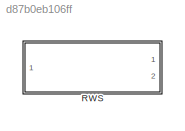
MODEL slx_d87b0eb106ff
KIND library
CONFIG AbsTol = auto
CONFIG EnableMultiTasking = off
CONFIG FixedStep = auto
CONFIG MaxStep = auto
CONFIG MinStep = auto
CONFIG RelTol = 1e-3
CONFIG SampleTimeConstraint = Unconstrained
CONFIG Solver = ode45
CONFIG SolverName = ode45
CONFIG StartTime = 0.0
CONFIG StopTime = 10.0
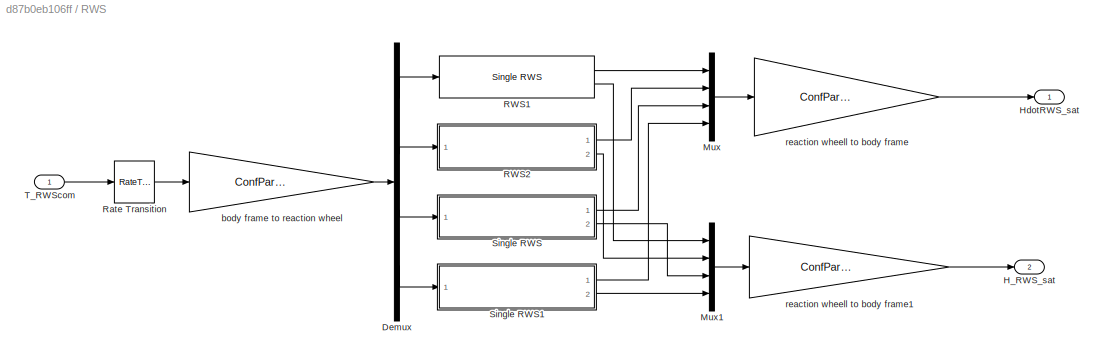
BLOCK [SubSystem] RWS
  Ports = [1, 2]
  RequestExecContextInheritance = off
BLOCK [Demux] RWS/Demux
  DisplayOption = bar
  Ports = [1, 4]
BLOCK [Outport] RWS/H_RWS_sat
  IconDisplay = Port number
  Port = 2
BLOCK [Outport] RWS/HdotRWS_sat
  IconDisplay = Port number
BLOCK [Mux] RWS/Mux
  DisplayOption = bar
  Ports = [4, 1]
BLOCK [Mux] RWS/Mux1
  DisplayOption = bar
  Ports = [4, 1]
BLOCK [Reference] RWS/RWS1  REF=SingleRWS/Single RWS
  Ports = [1, 2]
  SourceBlock = SingleRWS/Single RWS
  SourceType = SubSystem
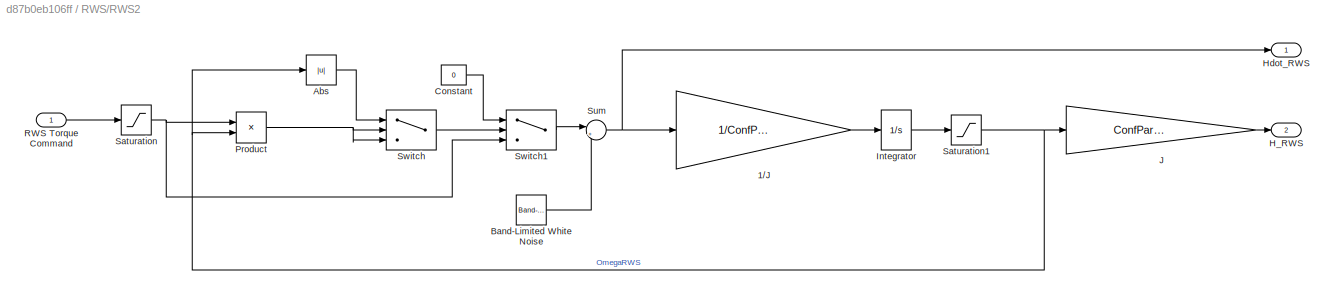
BLOCK [SubSystem] RWS/RWS2
  Ports = [1, 2]
  RequestExecContextInheritance = off
BLOCK [Gain] RWS/RWS2/1//J
  Gain = 1/ConfParam.confRWS.I_RWS
  OutDataTypeStr = Inherit: Inherit via internal rule
  ParamDataTypeStr = Inherit: Inherit via internal rule
  SaturateOnIntegerOverflow = off
BLOCK [Abs] RWS/RWS2/Abs
  SaturateOnIntegerOverflow = off
BLOCK [Reference] RWS/RWS2/Band-Limited White Noise  REF=simulink/Sources/Band-Limited
White Noise
  Ports = [0, 1]
  SourceBlock = simulink/Sources/Band-Limited\nWhite Noise
  SourceProductBaseCode = SL
  SourceProductName = Simulink
  SourceType = Band-Limited White Noise.
BLOCK [Constant] RWS/RWS2/Constant
  Value = 0
BLOCK [Outport] RWS/RWS2/H_RWS
  IconDisplay = Port number
  Port = 2
BLOCK [Outport] RWS/RWS2/Hdot_RWS
  IconDisplay = Port number
BLOCK [Integrator] RWS/RWS2/Integrator
  InitialCondition = ConfParam.confRWS.IntitOmegaRWS(2)
  Ports = [1, 1]
BLOCK [Gain] RWS/RWS2/J
  Gain = ConfParam.confRWS.I_RWS
  OutDataTypeStr = Inherit: Inherit via internal rule
  ParamDataTypeStr = Inherit: Inherit via internal rule
  SaturateOnIntegerOverflow = off
BLOCK [Product] RWS/RWS2/Product
  InputSameDT = off
  OutDataTypeStr = Inherit: Inherit via internal rule
  Ports = [2, 1]
  RndMeth = Floor
  SaturateOnIntegerOverflow = off
BLOCK [Inport] RWS/RWS2/RWS Torque Command
  IconDisplay = Port number
BLOCK [Saturate] RWS/RWS2/Saturation
  InputPortMap = u0
  LowerLimit = -ConfParam.confRWS.Tmax
  Ports = [1, 1]
  UpperLimit = ConfParam.confRWS.Tmax
BLOCK [Saturate] RWS/RWS2/Saturation1
  InputPortMap = u0
  LowerLimit = -ConfParam.confRWS.OmegaMax
  Ports = [1, 1]
  UpperLimit = ConfParam.confRWS.OmegaMax
BLOCK [Sum] RWS/RWS2/Sum
  IconShape = round
  InputSameDT = off
  Inputs = |++
  OutDataTypeStr = Inherit: Inherit via internal rule
  Ports = [2, 1]
  SaturateOnIntegerOverflow = off
BLOCK [Switch] RWS/RWS2/Switch
  Criteria = u2 > Threshold
  InputSameDT = off
  SaturateOnIntegerOverflow = off
BLOCK [Switch] RWS/RWS2/Switch1
  InputSameDT = off
  SaturateOnIntegerOverflow = off
  Threshold = ConfParam.confRWS.OmegaMax
BLOCK [RateTransition] RWS/Rate Transition
  InitialCondition = [0;0;0]
  OutPortSampleTime = ConfParam.confOrbit.dt
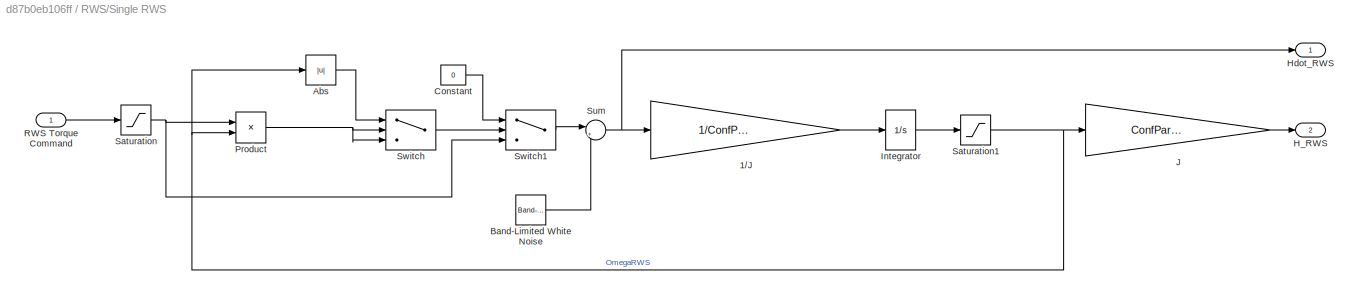
BLOCK [SubSystem] RWS/Single RWS
  Ports = [1, 2]
  RequestExecContextInheritance = off
BLOCK [Gain] RWS/Single RWS/1//J
  Gain = 1/ConfParam.confRWS.I_RWS
  OutDataTypeStr = Inherit: Inherit via internal rule
  ParamDataTypeStr = Inherit: Inherit via internal rule
  SaturateOnIntegerOverflow = off
BLOCK [Abs] RWS/Single RWS/Abs
  SaturateOnIntegerOverflow = off
BLOCK [Reference] RWS/Single RWS/Band-Limited White Noise  REF=simulink/Sources/Band-Limited
White Noise
  Ports = [0, 1]
  SourceBlock = simulink/Sources/Band-Limited\nWhite Noise
  SourceProductBaseCode = SL
  SourceProductName = Simulink
  SourceType = Band-Limited White Noise.
BLOCK [Constant] RWS/Single RWS/Constant
  Value = 0
BLOCK [Outport] RWS/Single RWS/H_RWS
  IconDisplay = Port number
  Port = 2
BLOCK [Outport] RWS/Single RWS/Hdot_RWS
  IconDisplay = Port number
BLOCK [Integrator] RWS/Single RWS/Integrator
  InitialCondition = ConfParam.confRWS.IntitOmegaRWS(3)
  Ports = [1, 1]
BLOCK [Gain] RWS/Single RWS/J
  Gain = ConfParam.confRWS.I_RWS
  OutDataTypeStr = Inherit: Inherit via internal rule
  ParamDataTypeStr = Inherit: Inherit via internal rule
  SaturateOnIntegerOverflow = off
BLOCK [Product] RWS/Single RWS/Product
  InputSameDT = off
  OutDataTypeStr = Inherit: Inherit via internal rule
  Ports = [2, 1]
  RndMeth = Floor
  SaturateOnIntegerOverflow = off
BLOCK [Inport] RWS/Single RWS/RWS Torque Command
  IconDisplay = Port number
BLOCK [Saturate] RWS/Single RWS/Saturation
  InputPortMap = u0
  LowerLimit = -ConfParam.confRWS.Tmax
  Ports = [1, 1]
  UpperLimit = ConfParam.confRWS.Tmax
BLOCK [Saturate] RWS/Single RWS/Saturation1
  InputPortMap = u0
  LowerLimit = -ConfParam.confRWS.OmegaMax
  Ports = [1, 1]
  UpperLimit = ConfParam.confRWS.OmegaMax
BLOCK [Sum] RWS/Single RWS/Sum
  IconShape = round
  InputSameDT = off
  Inputs = |++
  OutDataTypeStr = Inherit: Inherit via internal rule
  Ports = [2, 1]
  SaturateOnIntegerOverflow = off
BLOCK [Switch] RWS/Single RWS/Switch
  Criteria = u2 > Threshold
  InputSameDT = off
  SaturateOnIntegerOverflow = off
BLOCK [Switch] RWS/Single RWS/Switch1
  InputSameDT = off
  SaturateOnIntegerOverflow = off
  Threshold = ConfParam.confRWS.OmegaMax
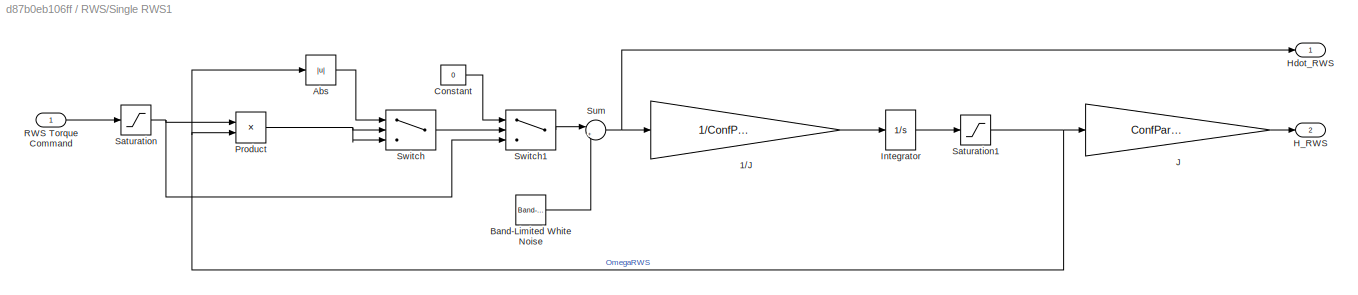
BLOCK [SubSystem] RWS/Single RWS1
  Ports = [1, 2]
  RequestExecContextInheritance = off
BLOCK [Gain] RWS/Single RWS1/1//J
  Gain = 1/ConfParam.confRWS.I_RWS
  OutDataTypeStr = Inherit: Inherit via internal rule
  ParamDataTypeStr = Inherit: Inherit via internal rule
  SaturateOnIntegerOverflow = off
BLOCK [Abs] RWS/Single RWS1/Abs
  SaturateOnIntegerOverflow = off
BLOCK [Reference] RWS/Single RWS1/Band-Limited White Noise  REF=simulink/Sources/Band-Limited
White Noise
  Ports = [0, 1]
  SourceBlock = simulink/Sources/Band-Limited\nWhite Noise
  SourceProductBaseCode = SL
  SourceProductName = Simulink
  SourceType = Band-Limited White Noise.
BLOCK [Constant] RWS/Single RWS1/Constant
  Value = 0
BLOCK [Outport] RWS/Single RWS1/H_RWS
  IconDisplay = Port number
  Port = 2
BLOCK [Outport] RWS/Single RWS1/Hdot_RWS
  IconDisplay = Port number
BLOCK [Integrator] RWS/Single RWS1/Integrator
  InitialCondition = ConfParam.confRWS.IntitOmegaRWS(4)
  Ports = [1, 1]
BLOCK [Gain] RWS/Single RWS1/J
  Gain = ConfParam.confRWS.I_RWS
  OutDataTypeStr = Inherit: Inherit via internal rule
  ParamDataTypeStr = Inherit: Inherit via internal rule
  SaturateOnIntegerOverflow = off
BLOCK [Product] RWS/Single RWS1/Product
  InputSameDT = off
  OutDataTypeStr = Inherit: Inherit via internal rule
  Ports = [2, 1]
  RndMeth = Floor
  SaturateOnIntegerOverflow = off
BLOCK [Inport] RWS/Single RWS1/RWS Torque Command
  IconDisplay = Port number
BLOCK [Saturate] RWS/Single RWS1/Saturation
  InputPortMap = u0
  LowerLimit = -ConfParam.confRWS.Tmax
  Ports = [1, 1]
  UpperLimit = ConfParam.confRWS.Tmax
BLOCK [Saturate] RWS/Single RWS1/Saturation1
  InputPortMap = u0
  LowerLimit = -ConfParam.confRWS.OmegaMax
  Ports = [1, 1]
  UpperLimit = ConfParam.confRWS.OmegaMax
BLOCK [Sum] RWS/Single RWS1/Sum
  IconShape = round
  InputSameDT = off
  Inputs = |++
  OutDataTypeStr = Inherit: Inherit via internal rule
  Ports = [2, 1]
  SaturateOnIntegerOverflow = off
BLOCK [Switch] RWS/Single RWS1/Switch
  Criteria = u2 > Threshold
  InputSameDT = off
  SaturateOnIntegerOverflow = off
BLOCK [Switch] RWS/Single RWS1/Switch1
  InputSameDT = off
  SaturateOnIntegerOverflow = off
  Threshold = ConfParam.confRWS.OmegaMax
BLOCK [Inport] RWS/T_RWScom
  IconDisplay = Port number
BLOCK [Gain] RWS/body frame to reaction wheel
  Gain = ConfParam.confRWS.N_bf
  Multiplication = Matrix(K*u)
  OutDataTypeStr = Inherit: Inherit via internal rule
  ParamDataTypeStr = Inherit: Inherit via internal rule
  SaturateOnIntegerOverflow = off
BLOCK [Gain] RWS/reaction wheell to body frame
  Gain = ConfParam.confRWS.N_RWS
  Multiplication = Matrix(K*u)
  OutDataTypeStr = Inherit: Inherit via internal rule
  ParamDataTypeStr = Inherit: Inherit via internal rule
  SaturateOnIntegerOverflow = off
BLOCK [Gain] RWS/reaction wheell to body frame1
  Gain = ConfParam.confRWS.N_RWS
  Multiplication = Matrix(K*u)
  OutDataTypeStr = Inherit: Inherit via internal rule
  ParamDataTypeStr = Inherit: Inherit via internal rule
  SaturateOnIntegerOverflow = off
LINE RWS/Demux:1 -> RWS/RWS1:1
LINE RWS/Demux:2 -> RWS/RWS2:1
LINE RWS/Demux:3 -> RWS/Single RWS:1
LINE RWS/Demux:4 -> RWS/Single RWS1:1
LINE RWS/Mux1:1 -> RWS/reaction wheell to body frame1:1
LINE RWS/Mux:1 -> RWS/reaction wheell to body frame:1
LINE RWS/RWS1:1 -> RWS/Mux:1
LINE RWS/RWS1:2 -> RWS/Mux1:1
LINE RWS/RWS2/1//J:1 -> RWS/RWS2/Integrator:1
LINE RWS/RWS2/Abs:1 -> RWS/RWS2/Switch:1
LINE RWS/RWS2/Band-Limited White Noise:1 -> RWS/RWS2/Sum:2
LINE RWS/RWS2/Constant:1 -> RWS/RWS2/Switch1:1
LINE RWS/RWS2/Integrator:1 -> RWS/RWS2/Saturation1:1
LINE RWS/RWS2/J:1 -> RWS/RWS2/H_RWS:1
NET RWS/RWS2/Product:1 -> RWS/RWS2/Switch:2, RWS/RWS2/Switch:3
LINE RWS/RWS2/RWS Torque Command:1 -> RWS/RWS2/Saturation:1
NET RWS/RWS2/Saturation1:1 -> RWS/RWS2/Abs:1, RWS/RWS2/J:1, RWS/RWS2/Product:2
NET RWS/RWS2/Saturation:1 -> RWS/RWS2/Product:1, RWS/RWS2/Switch1:3
NET RWS/RWS2/Sum:1 -> RWS/RWS2/1//J:1, RWS/RWS2/Hdot_RWS:1
LINE RWS/RWS2/Switch1:1 -> RWS/RWS2/Sum:1
LINE RWS/RWS2/Switch:1 -> RWS/RWS2/Switch1:2
LINE RWS/RWS2:1 -> RWS/Mux:2
LINE RWS/RWS2:2 -> RWS/Mux1:2
LINE RWS/Rate Transition:1 -> RWS/body frame to reaction wheel:1
LINE RWS/Single RWS/1//J:1 -> RWS/Single RWS/Integrator:1
LINE RWS/Single RWS/Abs:1 -> RWS/Single RWS/Switch:1
LINE RWS/Single RWS/Band-Limited White Noise:1 -> RWS/Single RWS/Sum:2
LINE RWS/Single RWS/Constant:1 -> RWS/Single RWS/Switch1:1
LINE RWS/Single RWS/Integrator:1 -> RWS/Single RWS/Saturation1:1
LINE RWS/Single RWS/J:1 -> RWS/Single RWS/H_RWS:1
NET RWS/Single RWS/Product:1 -> RWS/Single RWS/Switch:2, RWS/Single RWS/Switch:3
LINE RWS/Single RWS/RWS Torque Command:1 -> RWS/Single RWS/Saturation:1
NET RWS/Single RWS/Saturation1:1 -> RWS/Single RWS/Abs:1, RWS/Single RWS/J:1, RWS/Single RWS/Product:2
NET RWS/Single RWS/Saturation:1 -> RWS/Single RWS/Product:1, RWS/Single RWS/Switch1:3
NET RWS/Single RWS/Sum:1 -> RWS/Single RWS/1//J:1, RWS/Single RWS/Hdot_RWS:1
LINE RWS/Single RWS/Switch1:1 -> RWS/Single RWS/Sum:1
LINE RWS/Single RWS/Switch:1 -> RWS/Single RWS/Switch1:2
LINE RWS/Single RWS1/1//J:1 -> RWS/Single RWS1/Integrator:1
LINE RWS/Single RWS1/Abs:1 -> RWS/Single RWS1/Switch:1
LINE RWS/Single RWS1/Band-Limited White Noise:1 -> RWS/Single RWS1/Sum:2
LINE RWS/Single RWS1/Constant:1 -> RWS/Single RWS1/Switch1:1
LINE RWS/Single RWS1/Integrator:1 -> RWS/Single RWS1/Saturation1:1
LINE RWS/Single RWS1/J:1 -> RWS/Single RWS1/H_RWS:1
NET RWS/Single RWS1/Product:1 -> RWS/Single RWS1/Switch:2, RWS/Single RWS1/Switch:3
LINE RWS/Single RWS1/RWS Torque Command:1 -> RWS/Single RWS1/Saturation:1
NET RWS/Single RWS1/Saturation1:1 -> RWS/Single RWS1/Abs:1, RWS/Single RWS1/J:1, RWS/Single RWS1/Product:2
NET RWS/Single RWS1/Saturation:1 -> RWS/Single RWS1/Product:1, RWS/Single RWS1/Switch1:3
NET RWS/Single RWS1/Sum:1 -> RWS/Single RWS1/1//J:1, RWS/Single RWS1/Hdot_RWS:1
LINE RWS/Single RWS1/Switch1:1 -> RWS/Single RWS1/Sum:1
LINE RWS/Single RWS1/Switch:1 -> RWS/Single RWS1/Switch1:2
LINE RWS/Single RWS1:1 -> RWS/Mux:4
LINE RWS/Single RWS1:2 -> RWS/Mux1:4
LINE RWS/Single RWS:1 -> RWS/Mux:3
LINE RWS/Single RWS:2 -> RWS/Mux1:3
LINE RWS/T_RWScom:1 -> RWS/Rate Transition:1
LINE RWS/body frame to reaction wheel:1 -> RWS/Demux:1
LINE RWS/reaction wheell to body frame1:1 -> RWS/H_RWS_sat:1
LINE RWS/reaction wheell to body frame:1 -> RWS/HdotRWS_sat:1
note: NET lines group one-source signal fan-out (src -> all destinations, sorted); 1:1 wires keep LINE
